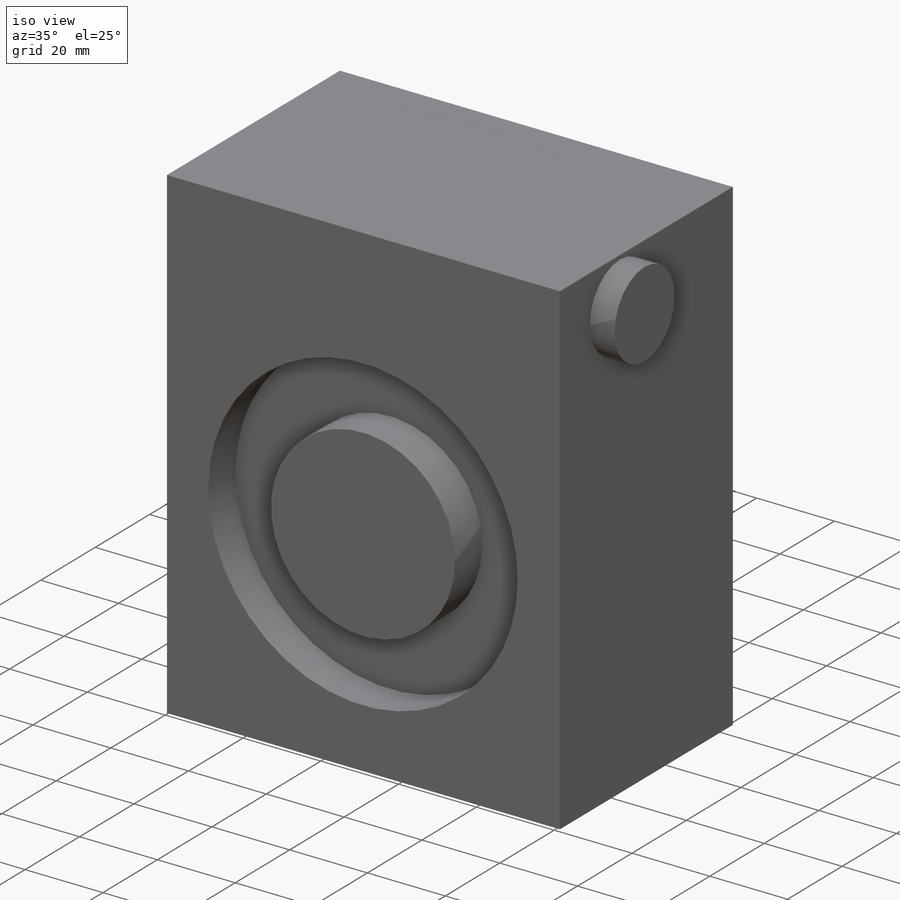
[diagram: iso view]
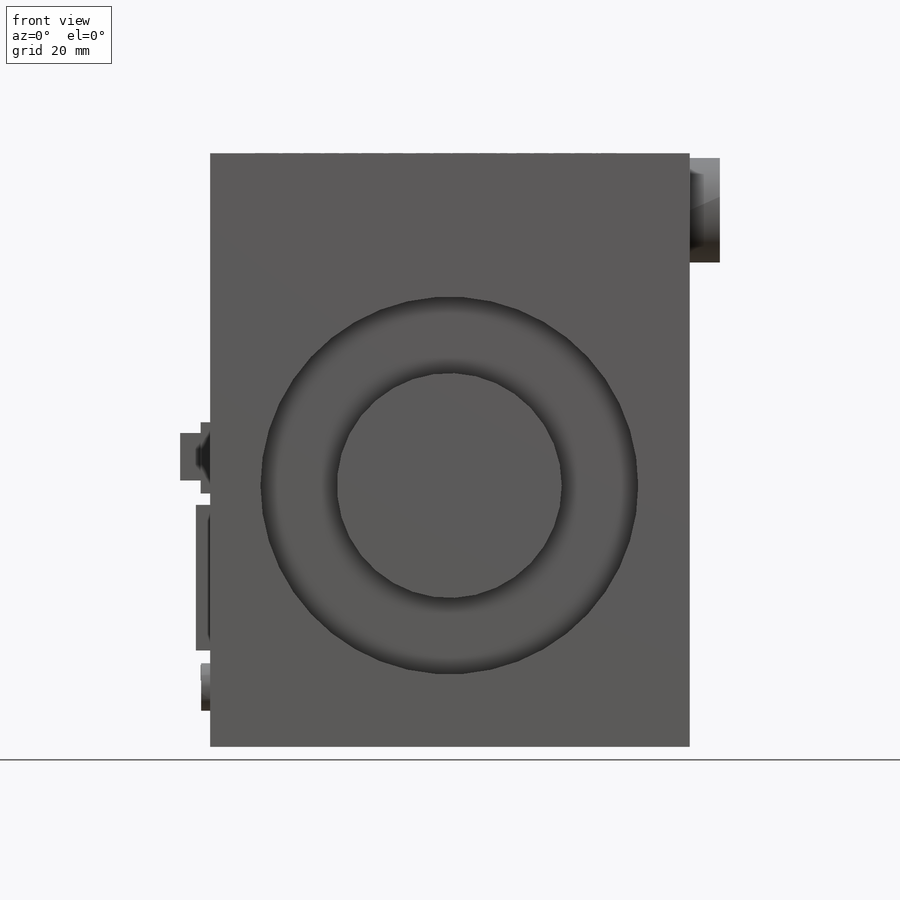
[diagram: front view]
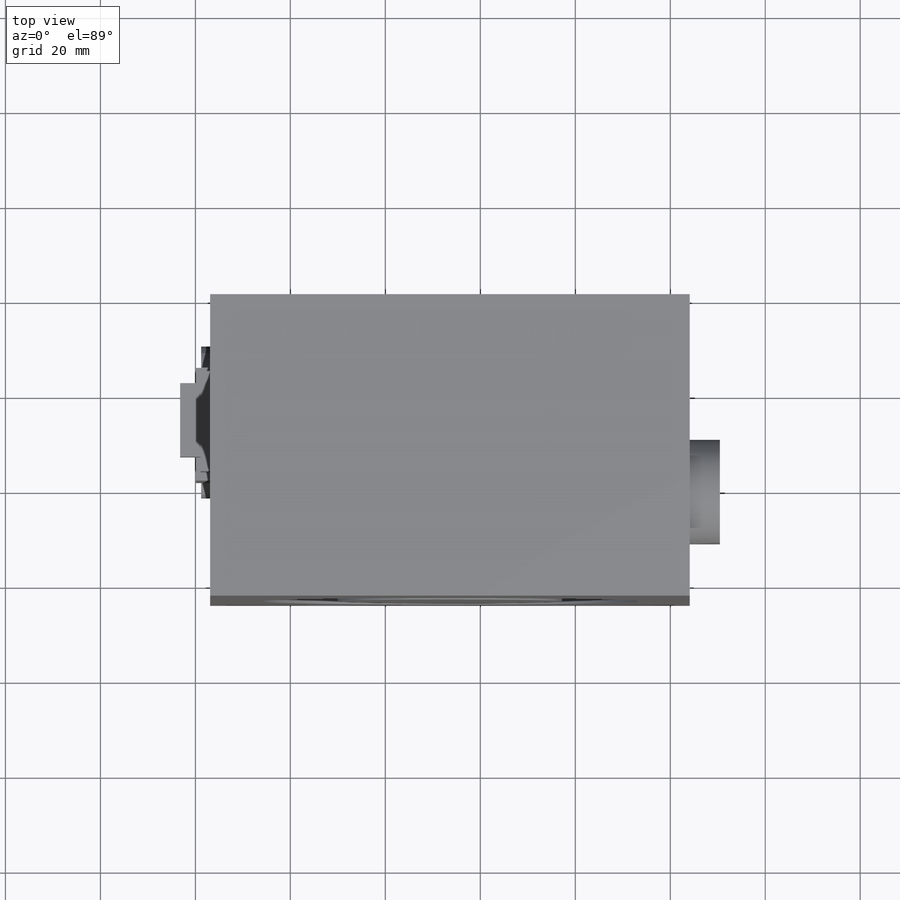
[diagram: top view]
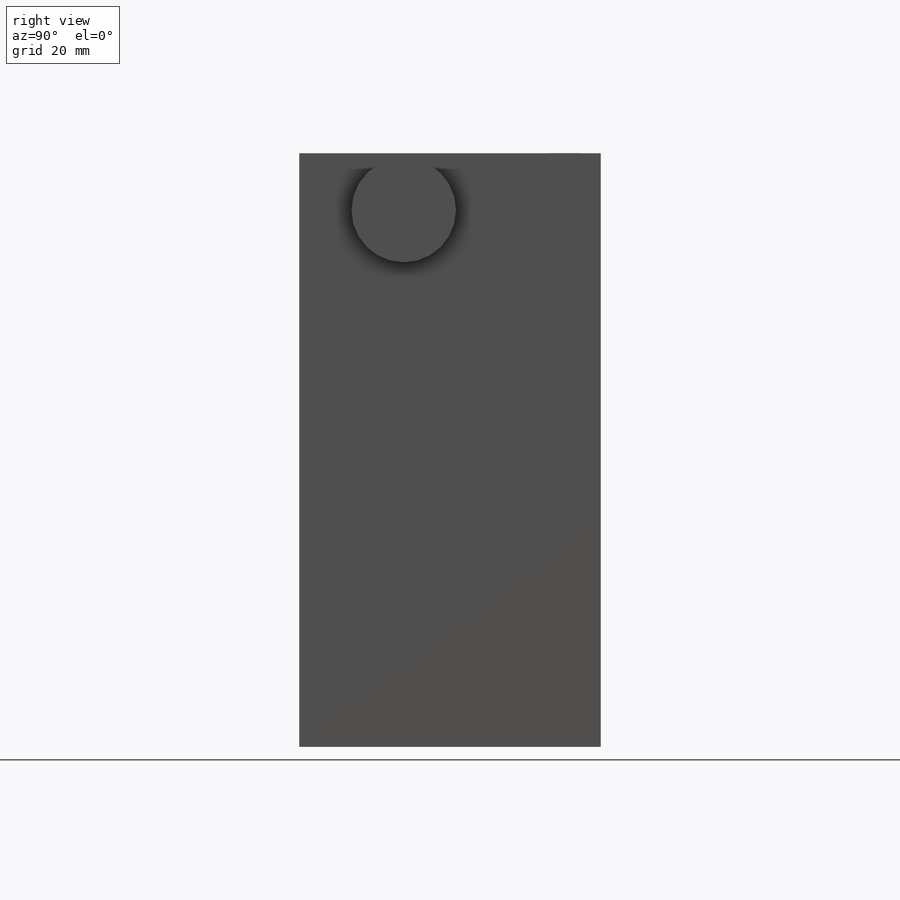
[diagram: right view]
SOLIDWORKS PART (.sldprt)
format: sldprt  version: not decoded by parser v0  size: 1,308,160 bytes
history: native  units: mm
features: sketch x14, extrude x9, cut_extrude x3, material x1, hole x1, pattern_linear x1 (+11 scaffold rows collapsed)
feature tree (40):
  scaffold x11  (default folders/planes/origin — collapsed)
  material  "Material <not specified>"
  sketch  "Sketch1"  dims[D1=63.5mm D2=101.0mm]
  extrude  "Boss-Extrude1"  Depth=125mm
  sketch  "Sketch2"  dims[c1.D2=~85.992104mm c1.D1=55.0mm c2.D2=55.0mm]
  cut_extrude  "Cut-Extrude1"  Depth=10mm
  hole  "3/16 (0.1875) Diameter Hole2"  Diameter=4.7625mm Depth=12.7mm
  sketch  "Sketch6"  dims[D1=5.75mm D2=6.25mm]
  sketch  "Sketch5"  dims[hole-wizard template sketch: 47 standard entries collapsed; hole parameters kept: c15.Hole Depth=12.7mm c15.D3=~14.816244mm c15.Drill Angle=118.0deg]
  pattern_linear  "LPattern1"  Count1=2 Count2=2 Spacing1=51mm Spacing2=113.5mm
  sketch  "Sketch7"  dims[D3=~48.688589mm D1=8.0 D2=10.0]
  cut_extrude  "Cut-Extrude2"  Depth=5mm
  sketch  "Sketch8"  dims[D1=23.75mm D2=30.65mm D3=20.3mm D4=25.5mm D5=14.25mm D6=74.05mm]
  extrude  "Power plug"  Depth=3mm
  sketch  "Sketch9"  dims[D1=15.0mm D2=21.0mm D3=2.4mm D4=27.2mm D5=15.3mm]
  extrude  "Boss-Extrude3"  Depth=2mm
  sketch  "Sketch10"  dims[D1=10.0mm D2=15.5mm]
  extrude  "Power switch"  Depth=4.3mm
  sketch  "Sketch11"  dims[D1=10.0mm D2=10.0mm]
  extrude  "Screws"  Depth=1.87mm
  sketch  "Sketch12"  dims[D1=22.0mm D2=12.0mm]
  extrude  "Boss-Extrude6"  Depth=6.35mm
  sketch  "Sketch13"
  extrude  "Boss-Extrude7"  Depth=0.01mm
  sketch  "Sketch14"
  extrude  "Text"  Depth=0.01mm
  sketch  "Sketch15"
  cut_extrude  "Cut-Extrude3"  Depth=15mm
  sketch  "Sketch16"
  extrude  "110-230 switch"  Depth=2mm
decode coverage: 24 of 28 modeling features carry decoded parameters
note: ~ marks probable driven/reference dimensions
note: suppression state not decoded; provenance and decode notes live in map.json
